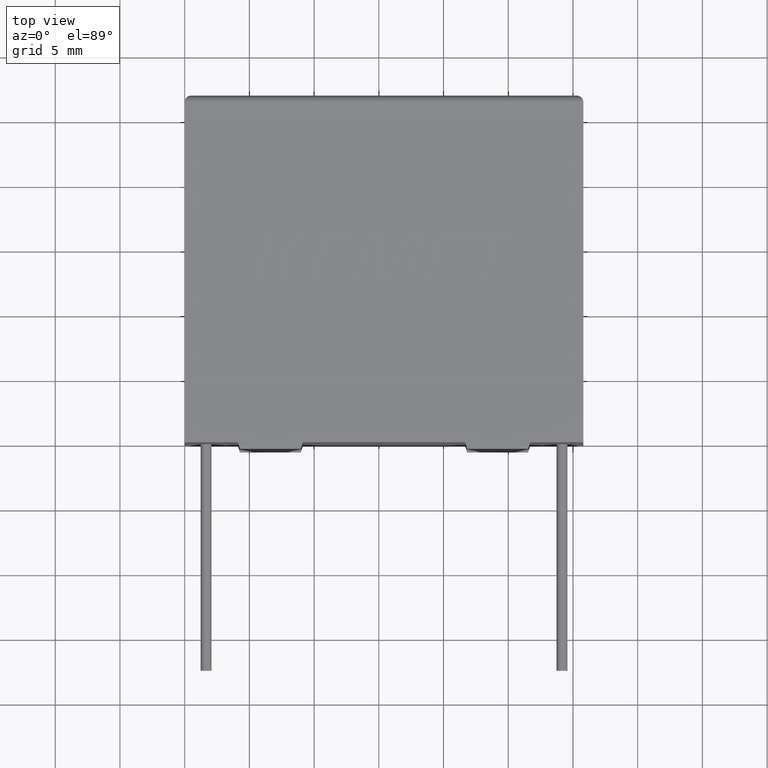
[diagram: clean part render]
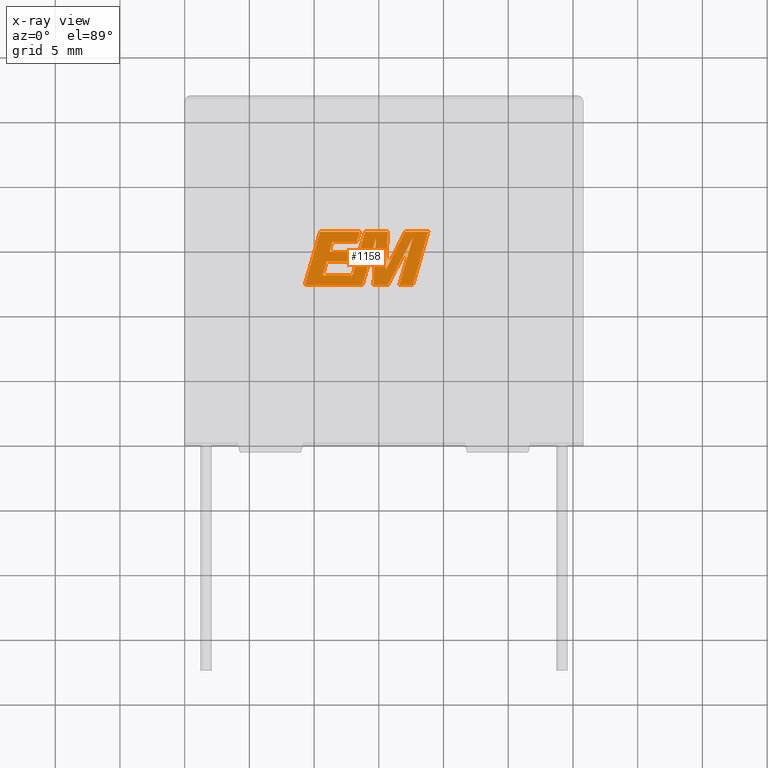
[diagram: x-ray — body ghosted, one internal face saturated and labeled with its STEP entity id]
A machine part, top view, then the same camera in x-ray: the body is ghosted and one INTERNAL B-rep face — a face not visible from any outside direction — is saturated and labeled: STEP entity #1158.
In plain terms, the highlighted planar face has unit normal (0, 0, -1).
Its self-contained STEP definition (entity closure, byte-faithful):
#11 = LINE ( 'NONE', #1203, #1275 ) ;
#20 = VERTEX_POINT ( 'NONE', #1219 ) ;
#28 = EDGE_CURVE ( 'NONE', #2869, #2794, #3209, .T. ) ;
#31 = EDGE_CURVE ( 'NONE', #229, #1619, #2262, .T. ) ;
#32 = LINE ( 'NONE', #507, #3123 ) ;
#61 = LINE ( 'NONE', #1208, #369 ) ;
#71 = DIRECTION ( 'NONE',  ( 0.05375259206908266500, 0.9985542843760947300, 0.0000000000000000000 ) ) ;
#83 = CARTESIAN_POINT ( 'NONE',  ( 12.96954747188877000, 12.90924532777515300, 16.80000000000000100 ) ) ;
#86 = LINE ( 'NONE', #2308, #2334 ) ;
#115 = ORIENTED_EDGE ( 'NONE', *, *, #828, .F. ) ;
#134 = CARTESIAN_POINT ( 'NONE',  ( 15.69610958390378200, 16.26147083597947000, 16.80000000000000100 ) ) ;
#136 = ORIENTED_EDGE ( 'NONE', *, *, #2505, .F. ) ;
#142 = DIRECTION ( 'NONE',  ( -1.000000000000000000, 0.0000000000000000000, 0.0000000000000000000 ) ) ;
#159 = CARTESIAN_POINT ( 'NONE',  ( 12.96302710175886700, 14.70346741207453100, 16.80000000000000100 ) ) ;
#164 = CARTESIAN_POINT ( 'NONE',  ( 14.78864262509342500, 15.80722257862214500, 16.80000000000000100 ) ) ;
#195 = ORIENTED_EDGE ( 'NONE', *, *, #680, .F. ) ;
#205 = CARTESIAN_POINT ( 'NONE',  ( 15.53690352780201200, 13.30392249645508500, 16.80000000000000100 ) ) ;
#210 = VECTOR ( 'NONE', #2624, 1000.000000000000100 ) ;
#223 = CARTESIAN_POINT ( 'NONE',  ( 14.78864262509342500, 15.80722257862214500, 16.80000000000000100 ) ) ;
#229 = VERTEX_POINT ( 'NONE', #1329 ) ;
#235 = VECTOR ( 'NONE', #2897, 1000.000000000000000 ) ;
#265 = ORIENTED_EDGE ( 'NONE', *, *, #292, .F. ) ;
#292 = EDGE_CURVE ( 'NONE', #1759, #1534, #582, .T. ) ;
#348 = VECTOR ( 'NONE', #2439, 1000.000000000000100 ) ;
#369 = VECTOR ( 'NONE', #982, 1000.000000000000000 ) ;
#375 = CARTESIAN_POINT ( 'NONE',  ( 17.00375072026786700, 16.26147083597947000, 16.80000000000000100 ) ) ;
#379 = CARTESIAN_POINT ( 'NONE',  ( 13.73040417366962300, 12.12163999999987100, 16.80000000000000100 ) ) ;
#380 = DIRECTION ( 'NONE',  ( 0.0000000000000000000, 0.0000000000000000000, -1.000000000000000000 ) ) ;
#393 = CARTESIAN_POINT ( 'NONE',  ( 0.1398049369151516700, -10.84998203595309500, 16.79999999999999700 ) ) ;
#447 = DIRECTION ( 'NONE',  ( 0.2732148821745923900, 0.9619530280415585800, 0.0000000000000000000 ) ) ;
#448 = EDGE_LOOP ( 'NONE', ( #2857, #1376, #2154, #1127, #511, #115, #2979, #1202, #3115, #2227, #1732, #1043, #1361, #136, #1951, #605, #899, #2752, #195, #2374, #3246, #265, #2196 ) ) ;
#451 = EDGE_CURVE ( 'NONE', #2448, #497, #2357, .T. ) ;
#468 = CARTESIAN_POINT ( 'NONE',  ( 15.68569702310159300, 12.12163999999987100, 16.80000000000000100 ) ) ;
#489 = CARTESIAN_POINT ( 'NONE',  ( 11.41022235134765100, 15.47347529300977500, 16.80000000000000100 ) ) ;
#490 = CARTESIAN_POINT ( 'NONE',  ( 17.62922047855146300, 12.12163999999987100, 16.80000000000000100 ) ) ;
#494 = DIRECTION ( 'NONE',  ( 0.2740217765954066100, 0.9617234872620595800, 0.0000000000000000000 ) ) ;
#497 = VERTEX_POINT ( 'NONE', #159 ) ;
#507 = CARTESIAN_POINT ( 'NONE',  ( 14.58205514484066800, 12.12163999999987100, 16.80000000000000100 ) ) ;
#511 = ORIENTED_EDGE ( 'NONE', *, *, #28, .F. ) ;
#540 = AXIS2_PLACEMENT_3D ( 'NONE', #393, #380, #2642 ) ;
#559 = LINE ( 'NONE', #1400, #1181 ) ;
#582 = LINE ( 'NONE', #1570, #3173 ) ;
#605 = ORIENTED_EDGE ( 'NONE', *, *, #451, .F. ) ;
#637 = DIRECTION ( 'NONE',  ( 1.000000000000000000, 0.0000000000000000000, 0.0000000000000000000 ) ) ;
#672 = CARTESIAN_POINT ( 'NONE',  ( 12.74443106336426700, 13.93815470114416200, 16.80000000000000100 ) ) ;
#680 = EDGE_CURVE ( 'NONE', #2001, #229, #3054, .T. ) ;
#686 = DIRECTION ( 'NONE',  ( -0.2762517575166160700, -0.9610853065513907900, 0.0000000000000000000 ) ) ;
#692 = VERTEX_POINT ( 'NONE', #2432 ) ;
#704 = VECTOR ( 'NONE', #1999, 1000.000000000000000 ) ;
#740 = EDGE_CURVE ( 'NONE', #1384, #20, #2631, .T. ) ;
#762 = CARTESIAN_POINT ( 'NONE',  ( 17.62922047855146300, 12.12163999999987100, 16.80000000000000100 ) ) ;
#772 = FACE_OUTER_BOUND ( 'NONE', #448, .T. ) ;
#779 = VECTOR ( 'NONE', #2604, 1000.000000000000000 ) ;
#826 = LINE ( 'NONE', #1936, #2447 ) ;
#828 = EDGE_CURVE ( 'NONE', #1546, #2869, #32, .T. ) ;
#895 = DIRECTION ( 'NONE',  ( 1.000000000000000000, 4.833865254349439700E-015, 0.0000000000000000000 ) ) ;
#899 = ORIENTED_EDGE ( 'NONE', *, *, #2716, .F. ) ;
#955 = CARTESIAN_POINT ( 'NONE',  ( 13.29637158458267400, 15.47347529300977500, 16.80000000000000100 ) ) ;
#975 = LINE ( 'NONE', #3144, #2514 ) ;
#982 = DIRECTION ( 'NONE',  ( -1.000000000000000000, 0.0000000000000000000, 0.0000000000000000000 ) ) ;
#994 = LINE ( 'NONE', #1367, #2526 ) ;
#999 = LINE ( 'NONE', #1423, #3181 ) ;
#1026 = EDGE_CURVE ( 'NONE', #3201, #2848, #1805, .T. ) ;
#1043 = ORIENTED_EDGE ( 'NONE', *, *, #2295, .F. ) ;
#1125 = PLANE ( 'NONE',  #540 ) ;
#1127 = ORIENTED_EDGE ( 'NONE', *, *, #3036, .F. ) ;
#1148 = EDGE_CURVE ( 'NONE', #497, #2031, #975, .T. ) ;
#1158 = ADVANCED_FACE ( 'NONE', ( #772 ), #1125, .T. ) ;
#1165 = DIRECTION ( 'NONE',  ( -1.000000000000000000, 0.0000000000000000000, 0.0000000000000000000 ) ) ;
#1181 = VECTOR ( 'NONE', #1652, 1000.000000000000000 ) ;
#1202 = ORIENTED_EDGE ( 'NONE', *, *, #3220, .F. ) ;
#1203 = CARTESIAN_POINT ( 'NONE',  ( 13.93310209281664300, 16.26147083597947000, 16.80000000000000100 ) ) ;
#1208 = CARTESIAN_POINT ( 'NONE',  ( 15.69610958390378200, 16.26147083597947000, 16.80000000000000100 ) ) ;
#1219 = CARTESIAN_POINT ( 'NONE',  ( 18.81945236879373000, 16.26147083597947000, 16.80000000000000100 ) ) ;
#1275 = VECTOR ( 'NONE', #686, 1000.000000000000000 ) ;
#1295 = DIRECTION ( 'NONE',  ( 1.000000000000000000, 0.0000000000000000000, 0.0000000000000000000 ) ) ;
#1308 = VECTOR ( 'NONE', #637, 1000.000000000000000 ) ;
#1329 = CARTESIAN_POINT ( 'NONE',  ( 10.67465410882606100, 12.90924532777515300, 16.80000000000000100 ) ) ;
#1331 = CARTESIAN_POINT ( 'NONE',  ( 17.64070035802886600, 15.82497107649059500, 16.80000000000000100 ) ) ;
#1361 = ORIENTED_EDGE ( 'NONE', *, *, #2947, .F. ) ;
#1364 = CARTESIAN_POINT ( 'NONE',  ( 12.74443106336426700, 13.93815470114416200, 16.80000000000000100 ) ) ;
#1367 = CARTESIAN_POINT ( 'NONE',  ( 12.99352682210202800, 12.12163999999987100, 16.80000000000000100 ) ) ;
#1376 = ORIENTED_EDGE ( 'NONE', *, *, #740, .F. ) ;
#1384 = VERTEX_POINT ( 'NONE', #762 ) ;
#1388 = CARTESIAN_POINT ( 'NONE',  ( 10.96781901347959300, 13.93815470114416200, 16.80000000000000100 ) ) ;
#1400 = CARTESIAN_POINT ( 'NONE',  ( 10.96781901347959300, 13.93815470114416200, 16.80000000000000100 ) ) ;
#1411 = DIRECTION ( 'NONE',  ( -1.000000000000000000, 0.0000000000000000000, 0.0000000000000000000 ) ) ;
#1423 = CARTESIAN_POINT ( 'NONE',  ( 13.52017888405641500, 16.26147083597947000, 16.80000000000000100 ) ) ;
#1430 = CARTESIAN_POINT ( 'NONE',  ( 13.52017888405641500, 16.26147083597947000, 16.80000000000000100 ) ) ;
#1459 = DIRECTION ( 'NONE',  ( -1.000000000000000000, 0.0000000000000000000, 0.0000000000000000000 ) ) ;
#1476 = LINE ( 'NONE', #2228, #3150 ) ;
#1534 = VERTEX_POINT ( 'NONE', #134 ) ;
#1536 = CARTESIAN_POINT ( 'NONE',  ( 14.58205514484066800, 12.12163999999987100, 16.80000000000000100 ) ) ;
#1546 = VERTEX_POINT ( 'NONE', #1536 ) ;
#1570 = CARTESIAN_POINT ( 'NONE',  ( 15.53690352780201200, 13.30392249645508500, 16.80000000000000100 ) ) ;
#1575 = DIRECTION ( 'NONE',  ( 0.2793947940878288000, 0.9601763114327596100, 0.0000000000000000000 ) ) ;
#1588 = CARTESIAN_POINT ( 'NONE',  ( 10.46181059778516300, 16.26147083597947000, 16.80000000000000100 ) ) ;
#1589 = VECTOR ( 'NONE', #1459, 1000.000000000000000 ) ;
#1592 = VERTEX_POINT ( 'NONE', #379 ) ;
#1619 = VERTEX_POINT ( 'NONE', #1388 ) ;
#1652 = DIRECTION ( 'NONE',  ( 1.000000000000000000, 0.0000000000000000000, 0.0000000000000000000 ) ) ;
#1705 = VERTEX_POINT ( 'NONE', #2735 ) ;
#1706 = EDGE_CURVE ( 'NONE', #1534, #2672, #61, .T. ) ;
#1732 = ORIENTED_EDGE ( 'NONE', *, *, #2681, .F. ) ;
#1759 = VERTEX_POINT ( 'NONE', #205 ) ;
#1798 = VERTEX_POINT ( 'NONE', #489 ) ;
#1805 = LINE ( 'NONE', #1588, #2290 ) ;
#1922 = CARTESIAN_POINT ( 'NONE',  ( 16.57722547035351500, 12.12163999999987100, 16.80000000000000100 ) ) ;
#1936 = CARTESIAN_POINT ( 'NONE',  ( 17.64070035802886600, 15.82497107649059500, 16.80000000000000100 ) ) ;
#1937 = LINE ( 'NONE', #1922, #235 ) ;
#1951 = ORIENTED_EDGE ( 'NONE', *, *, #1148, .F. ) ;
#1972 = VECTOR ( 'NONE', #2259, 1000.000000000000200 ) ;
#1973 = VECTOR ( 'NONE', #494, 1000.000000000000200 ) ;
#1983 = LINE ( 'NONE', #2175, #1308 ) ;
#1999 = DIRECTION ( 'NONE',  ( 0.4668459304955212000, 0.8843386665637610300, 0.0000000000000000000 ) ) ;
#2001 = VERTEX_POINT ( 'NONE', #83 ) ;
#2014 = LINE ( 'NONE', #2173, #3063 ) ;
#2031 = VERTEX_POINT ( 'NONE', #2341 ) ;
#2122 = DIRECTION ( 'NONE',  ( -0.2765379750249960500, -0.9610029908221278100, 0.0000000000000000000 ) ) ;
#2154 = ORIENTED_EDGE ( 'NONE', *, *, #3204, .F. ) ;
#2173 = CARTESIAN_POINT ( 'NONE',  ( 13.73040417366962300, 12.12163999999987100, 16.80000000000000100 ) ) ;
#2175 = CARTESIAN_POINT ( 'NONE',  ( 11.41022235134765100, 15.47347529300977500, 16.80000000000000100 ) ) ;
#2195 = EDGE_CURVE ( 'NONE', #1705, #1759, #2834, .T. ) ;
#2196 = ORIENTED_EDGE ( 'NONE', *, *, #2195, .F. ) ;
#2199 = CARTESIAN_POINT ( 'NONE',  ( 9.270533934485236200, 12.12163999999987100, 16.80000000000000100 ) ) ;
#2227 = ORIENTED_EDGE ( 'NONE', *, *, #1026, .F. ) ;
#2228 = CARTESIAN_POINT ( 'NONE',  ( 13.29637158458267400, 15.47347529300977500, 16.80000000000000100 ) ) ;
#2230 = LINE ( 'NONE', #223, #348 ) ;
#2242 = CARTESIAN_POINT ( 'NONE',  ( 15.68569702310159300, 12.12163999999987100, 16.80000000000000100 ) ) ;
#2259 = DIRECTION ( 'NONE',  ( 0.2763139702539116300, 0.9610674221107072800, 0.0000000000000000000 ) ) ;
#2262 = LINE ( 'NONE', #2996, #1973 ) ;
#2290 = VECTOR ( 'NONE', #2122, 1000.000000000000100 ) ;
#2295 = EDGE_CURVE ( 'NONE', #3155, #3218, #1476, .T. ) ;
#2308 = CARTESIAN_POINT ( 'NONE',  ( 11.18616330013143300, 14.70346741207453100, 16.80000000000000100 ) ) ;
#2334 = VECTOR ( 'NONE', #1575, 1000.000000000000000 ) ;
#2341 = CARTESIAN_POINT ( 'NONE',  ( 11.18616330013143300, 14.70346741207453100, 16.80000000000000100 ) ) ;
#2349 = EDGE_CURVE ( 'NONE', #2672, #2001, #11, .T. ) ;
#2357 = LINE ( 'NONE', #1364, #779 ) ;
#2374 = ORIENTED_EDGE ( 'NONE', *, *, #2349, .F. ) ;
#2401 = VECTOR ( 'NONE', #1165, 1000.000000000000000 ) ;
#2432 = CARTESIAN_POINT ( 'NONE',  ( 16.57722547035351500, 12.12163999999987100, 16.80000000000000100 ) ) ;
#2439 = DIRECTION ( 'NONE',  ( -0.05596501978068204500, -0.9984327301130245800, 0.0000000000000000000 ) ) ;
#2447 = VECTOR ( 'NONE', #2914, 1000.000000000000200 ) ;
#2448 = VERTEX_POINT ( 'NONE', #672 ) ;
#2505 = EDGE_CURVE ( 'NONE', #2031, #1798, #86, .T. ) ;
#2514 = VECTOR ( 'NONE', #142, 1000.000000000000000 ) ;
#2526 = VECTOR ( 'NONE', #895, 1000.000000000000000 ) ;
#2604 = DIRECTION ( 'NONE',  ( 0.2746459304916905000, 0.9615454294334477800, 0.0000000000000000000 ) ) ;
#2624 = DIRECTION ( 'NONE',  ( -0.4443210308329058600, -0.8958676361827030400, 0.0000000000000000000 ) ) ;
#2631 = LINE ( 'NONE', #490, #1972 ) ;
#2642 = DIRECTION ( 'NONE',  ( -1.000000000000000000, 0.0000000000000000000, 0.0000000000000000000 ) ) ;
#2672 = VERTEX_POINT ( 'NONE', #3154 ) ;
#2681 = EDGE_CURVE ( 'NONE', #3218, #3201, #999, .T. ) ;
#2716 = EDGE_CURVE ( 'NONE', #1619, #2448, #559, .T. ) ;
#2735 = CARTESIAN_POINT ( 'NONE',  ( 17.00375072026786700, 16.26147083597947000, 16.80000000000000100 ) ) ;
#2752 = ORIENTED_EDGE ( 'NONE', *, *, #31, .F. ) ;
#2794 = VERTEX_POINT ( 'NONE', #1331 ) ;
#2834 = LINE ( 'NONE', #375, #210 ) ;
#2848 = VERTEX_POINT ( 'NONE', #2199 ) ;
#2857 = ORIENTED_EDGE ( 'NONE', *, *, #3077, .F. ) ;
#2869 = VERTEX_POINT ( 'NONE', #468 ) ;
#2890 = EDGE_CURVE ( 'NONE', #3214, #1546, #2230, .T. ) ;
#2897 = DIRECTION ( 'NONE',  ( 1.000000000000000000, 0.0000000000000000000, 0.0000000000000000000 ) ) ;
#2906 = LINE ( 'NONE', #2954, #1589 ) ;
#2914 = DIRECTION ( 'NONE',  ( -0.2760118818968562100, -0.9611542233438689100, 0.0000000000000000000 ) ) ;
#2932 = CARTESIAN_POINT ( 'NONE',  ( 10.46181059778516300, 16.26147083597947000, 16.80000000000000100 ) ) ;
#2947 = EDGE_CURVE ( 'NONE', #1798, #3155, #1983, .T. ) ;
#2954 = CARTESIAN_POINT ( 'NONE',  ( 18.81945236879373000, 16.26147083597947000, 16.80000000000000100 ) ) ;
#2979 = ORIENTED_EDGE ( 'NONE', *, *, #2890, .F. ) ;
#2996 = CARTESIAN_POINT ( 'NONE',  ( 10.67465410882606100, 12.90924532777515300, 16.80000000000000100 ) ) ;
#3036 = EDGE_CURVE ( 'NONE', #2794, #692, #826, .T. ) ;
#3054 = LINE ( 'NONE', #3205, #2401 ) ;
#3063 = VECTOR ( 'NONE', #3170, 1000.000000000000100 ) ;
#3077 = EDGE_CURVE ( 'NONE', #20, #1705, #2906, .T. ) ;
#3115 = ORIENTED_EDGE ( 'NONE', *, *, #3127, .F. ) ;
#3123 = VECTOR ( 'NONE', #1295, 1000.000000000000000 ) ;
#3127 = EDGE_CURVE ( 'NONE', #2848, #1592, #994, .T. ) ;
#3144 = CARTESIAN_POINT ( 'NONE',  ( 12.96302710175886700, 14.70346741207453100, 16.80000000000000100 ) ) ;
#3150 = VECTOR ( 'NONE', #447, 1000.000000000000100 ) ;
#3154 = CARTESIAN_POINT ( 'NONE',  ( 13.93310209281664300, 16.26147083597947000, 16.80000000000000100 ) ) ;
#3155 = VERTEX_POINT ( 'NONE', #955 ) ;
#3170 = DIRECTION ( 'NONE',  ( 0.2759782365590801600, 0.9611638845408936300, 0.0000000000000000000 ) ) ;
#3173 = VECTOR ( 'NONE', #71, 1000.000000000000100 ) ;
#3181 = VECTOR ( 'NONE', #1411, 1000.000000000000000 ) ;
#3201 = VERTEX_POINT ( 'NONE', #2932 ) ;
#3204 = EDGE_CURVE ( 'NONE', #692, #1384, #1937, .T. ) ;
#3205 = CARTESIAN_POINT ( 'NONE',  ( 12.96954747188877000, 12.90924532777515300, 16.80000000000000100 ) ) ;
#3209 = LINE ( 'NONE', #2242, #704 ) ;
#3214 = VERTEX_POINT ( 'NONE', #164 ) ;
#3218 = VERTEX_POINT ( 'NONE', #1430 ) ;
#3220 = EDGE_CURVE ( 'NONE', #1592, #3214, #2014, .T. ) ;
#3246 = ORIENTED_EDGE ( 'NONE', *, *, #1706, .F. ) ;